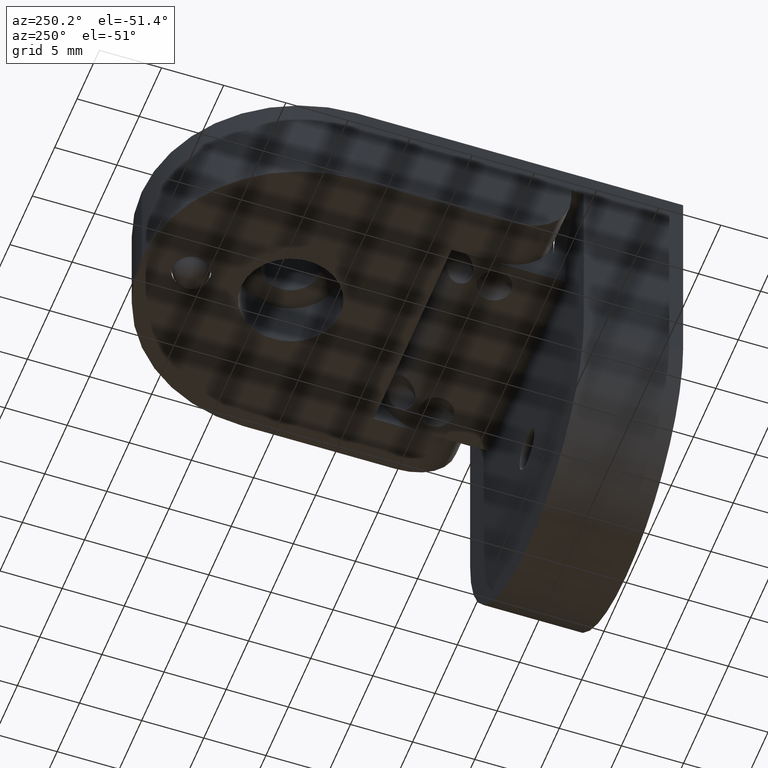
[diagram: clean part render]
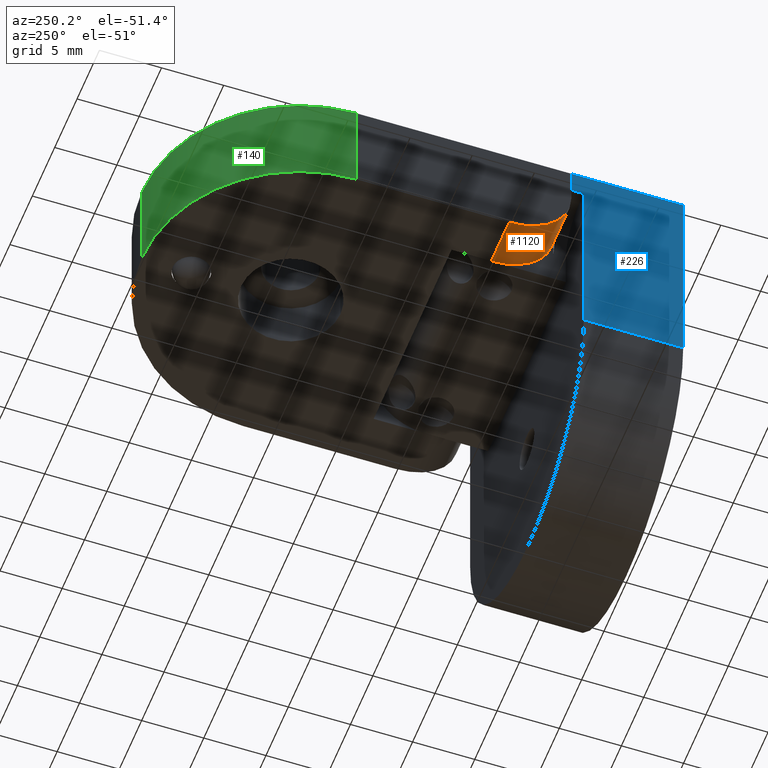
[diagram: same view with three faces highlighted in distinct colors, each labeled with its STEP entity id]
A machine part, auxiliary view with three faces highlighted in distinct colors.
Their STEP definitions:

[orange] entity #1120 — the highlighted cylindrical surface (partial cylindrical patch) has radius 5 mm, axis along (1, -0, -0).
#10 = AXIS2_PLACEMENT_3D ( 'NONE', #566, #1873, #1452 ) ;
#34 = EDGE_CURVE ( 'NONE', #1153, #2716, #87, .T. ) ;
#36 = VECTOR ( 'NONE', #2794, 1000.000000000000000 ) ;
#72 = CYLINDRICAL_SURFACE ( 'NONE', #906, 4.999999999999999100 ) ;
#87 = CIRCLE ( 'NONE', #10, 5.000000000000000900 ) ;
#152 = CARTESIAN_POINT ( 'NONE',  ( -8.699999999999985100, 13.99999999999999500, -7.999999999999996400 ) ) ;
#288 = ORIENTED_EDGE ( 'NONE', *, *, #381, .F. ) ;
#309 = ORIENTED_EDGE ( 'NONE', *, *, #692, .F. ) ;
#381 = EDGE_CURVE ( 'NONE', #1014, #2231, #1895, .T. ) ;
#497 = ORIENTED_EDGE ( 'NONE', *, *, #34, .F. ) ;
#517 = AXIS2_PLACEMENT_3D ( 'NONE', #2078, #2517, #1188 ) ;
#566 = CARTESIAN_POINT ( 'NONE',  ( -8.699999999999985100, 13.99999999999999500, -2.999999999999996400 ) ) ;
#584 = CARTESIAN_POINT ( 'NONE',  ( -12.69999999999999400, 8.999999999999996400, -2.999999999999995600 ) ) ;
#688 = CARTESIAN_POINT ( 'NONE',  ( -12.69999999999999200, 13.99999999999999600, -2.999999999999995600 ) ) ;
#692 = EDGE_CURVE ( 'NONE', #2716, #1014, #1910, .T. ) ;
#906 = AXIS2_PLACEMENT_3D ( 'NONE', #688, #2404, #2325 ) ;
#930 = CARTESIAN_POINT ( 'NONE',  ( -12.69999999999999200, 13.99999999999999600, -7.999999999999996400 ) ) ;
#1014 = VERTEX_POINT ( 'NONE', #1780 ) ;
#1120 = ADVANCED_FACE ( 'NONE', ( #2018 ), #72, .T. ) ;
#1153 = VERTEX_POINT ( 'NONE', #2570 ) ;
#1188 = DIRECTION ( 'NONE',  ( 3.469446951953614700E-016, 1.000000000000000000, 8.673617379884037400E-016 ) ) ;
#1338 = VECTOR ( 'NONE', #2206, 1000.000000000000000 ) ;
#1452 = DIRECTION ( 'NONE',  ( -3.469446951953613700E-016, -1.000000000000000000, 0.0000000000000000000 ) ) ;
#1624 = CARTESIAN_POINT ( 'NONE',  ( -12.69999999999999400, 8.999999999999996400, -2.999999999999995600 ) ) ;
#1699 = LINE ( 'NONE', #584, #36 ) ;
#1733 = EDGE_LOOP ( 'NONE', ( #288, #309, #497, #2555 ) ) ;
#1780 = CARTESIAN_POINT ( 'NONE',  ( -12.69999999999999000, 13.99999999999999500, -7.999999999999996400 ) ) ;
#1873 = DIRECTION ( 'NONE',  ( 1.000000000000000000, -1.738121547108112200E-016, -1.734720147809983500E-016 ) ) ;
#1895 = CIRCLE ( 'NONE', #517, 4.999999999999999100 ) ;
#1910 = LINE ( 'NONE', #930, #1338 ) ;
#2018 = FACE_OUTER_BOUND ( 'NONE', #1733, .T. ) ;
#2078 = CARTESIAN_POINT ( 'NONE',  ( -12.69999999999999000, 13.99999999999999600, -2.999999999999995600 ) ) ;
#2206 = DIRECTION ( 'NONE',  ( -1.000000000000000000, 1.738121547108112200E-016, 1.734720147809983500E-016 ) ) ;
#2231 = VERTEX_POINT ( 'NONE', #1624 ) ;
#2325 = DIRECTION ( 'NONE',  ( 3.469446951953614700E-016, 1.000000000000000000, 0.0000000000000000000 ) ) ;
#2404 = DIRECTION ( 'NONE',  ( 1.000000000000000000, -1.738121547108112200E-016, -1.734720147809983500E-016 ) ) ;
#2517 = DIRECTION ( 'NONE',  ( -1.000000000000000000, 4.051086181743855900E-016, 1.734720147809983500E-016 ) ) ;
#2555 = ORIENTED_EDGE ( 'NONE', *, *, #2748, .F. ) ;
#2570 = CARTESIAN_POINT ( 'NONE',  ( -8.699999999999986900, 8.999999999999996400, -2.999999999999996400 ) ) ;
#2716 = VERTEX_POINT ( 'NONE', #152 ) ;
#2748 = EDGE_CURVE ( 'NONE', #2231, #1153, #1699, .T. ) ;
#2794 = DIRECTION ( 'NONE',  ( 1.000000000000000000, -1.738121547108112200E-016, -1.734720147809983500E-016 ) ) ;

[blue] entity #226 — the highlighted planar face has unit normal (1, -0, 0).
#32 = FACE_OUTER_BOUND ( 'NONE', #1155, .T. ) ;
#153 = DIRECTION ( 'NONE',  ( 2.312964634635743400E-016, 0.0000000000000000000, -1.000000000000000000 ) ) ;
#224 = EDGE_CURVE ( 'NONE', #1386, #235, #605, .T. ) ;
#226 = ADVANCED_FACE ( 'NONE', ( #32 ), #1844, .F. ) ;
#235 = VERTEX_POINT ( 'NONE', #797 ) ;
#287 = CARTESIAN_POINT ( 'NONE',  ( -12.69999999999999800, 8.000000000000000000, -30.00000000000000000 ) ) ;
#439 = CARTESIAN_POINT ( 'NONE',  ( -12.69999999999999900, 8.000000000000000000, -2.000000000000000000 ) ) ;
#605 = LINE ( 'NONE', #1892, #2266 ) ;
#606 = DIRECTION ( 'NONE',  ( -0.0000000000000000000, -1.000000000000000000, -0.0000000000000000000 ) ) ;
#626 = EDGE_CURVE ( 'NONE', #1391, #1576, #2116, .T. ) ;
#684 = VECTOR ( 'NONE', #691, 1000.000000000000000 ) ;
#691 = DIRECTION ( 'NONE',  ( -2.312964634635743000E-016, 0.0000000000000000000, 1.000000000000000000 ) ) ;
#694 = DIRECTION ( 'NONE',  ( -0.0000000000000000000, -0.0000000000000000000, 1.000000000000000000 ) ) ;
#797 = CARTESIAN_POINT ( 'NONE',  ( -12.70000000000000100, 0.0000000000000000000, -17.30000000000000800 ) ) ;
#871 = DIRECTION ( 'NONE',  ( 1.000000000000000000, -0.0000000000000000000, 2.312964634635743400E-016 ) ) ;
#933 = EDGE_CURVE ( 'NONE', #1386, #1576, #2274, .T. ) ;
#981 = VERTEX_POINT ( 'NONE', #1955 ) ;
#1121 = CARTESIAN_POINT ( 'NONE',  ( -12.69999999999999900, 9.000000000000001800, -3.673940397442155600E-017 ) ) ;
#1130 = VECTOR ( 'NONE', #606, 1000.000000000000000 ) ;
#1155 = EDGE_LOOP ( 'NONE', ( #1896, #1935, #1971, #2035, #2099, #2175 ) ) ;
#1186 = CARTESIAN_POINT ( 'NONE',  ( -12.69999999999999800, 8.000000000000000000, -30.00000000000000000 ) ) ;
#1229 = VECTOR ( 'NONE', #694, 1000.000000000000000 ) ;
#1264 = LINE ( 'NONE', #1548, #684 ) ;
#1306 = LINE ( 'NONE', #1121, #1229 ) ;
#1312 = CARTESIAN_POINT ( 'NONE',  ( -12.69999999999999900, 9.000000000000001800, -2.000000000000000000 ) ) ;
#1386 = VERTEX_POINT ( 'NONE', #1508 ) ;
#1391 = VERTEX_POINT ( 'NONE', #1312 ) ;
#1507 = DIRECTION ( 'NONE',  ( -0.0000000000000000000, -1.000000000000000000, -0.0000000000000000000 ) ) ;
#1508 = CARTESIAN_POINT ( 'NONE',  ( -12.70000000000000100, 8.000000000000000000, -17.30000000000000800 ) ) ;
#1548 = CARTESIAN_POINT ( 'NONE',  ( -12.69999999999999800, 0.0000000000000000000, -30.00000000000000000 ) ) ;
#1563 = CARTESIAN_POINT ( 'NONE',  ( -12.69999999999999900, 9.000000000000001800, -3.673940397442155600E-017 ) ) ;
#1576 = VERTEX_POINT ( 'NONE', #439 ) ;
#1672 = DIRECTION ( 'NONE',  ( 0.0000000000000000000, -1.000000000000000000, 0.0000000000000000000 ) ) ;
#1703 = LINE ( 'NONE', #1914, #1130 ) ;
#1844 = PLANE ( 'NONE',  #1847 ) ;
#1847 = AXIS2_PLACEMENT_3D ( 'NONE', #1186, #871, #153 ) ;
#1864 = VERTEX_POINT ( 'NONE', #1563 ) ;
#1892 = CARTESIAN_POINT ( 'NONE',  ( -12.70000000000000100, 8.000000000000000000, -17.30000000000000800 ) ) ;
#1896 = ORIENTED_EDGE ( 'NONE', *, *, #933, .F. ) ;
#1914 = CARTESIAN_POINT ( 'NONE',  ( -12.70000000000000500, 8.000000000000000000, -1.340988245066351500E-015 ) ) ;
#1935 = ORIENTED_EDGE ( 'NONE', *, *, #224, .T. ) ;
#1955 = CARTESIAN_POINT ( 'NONE',  ( -12.70000000000000500, 0.0000000000000000000, -1.340988245066351500E-015 ) ) ;
#1971 = ORIENTED_EDGE ( 'NONE', *, *, #2473, .T. ) ;
#2022 = EDGE_CURVE ( 'NONE', #1391, #1864, #1306, .T. ) ;
#2035 = ORIENTED_EDGE ( 'NONE', *, *, #2378, .F. ) ;
#2099 = ORIENTED_EDGE ( 'NONE', *, *, #2022, .F. ) ;
#2116 = LINE ( 'NONE', #2627, #2653 ) ;
#2175 = ORIENTED_EDGE ( 'NONE', *, *, #626, .T. ) ;
#2266 = VECTOR ( 'NONE', #1672, 1000.000000000000000 ) ;
#2274 = LINE ( 'NONE', #287, #2753 ) ;
#2374 = DIRECTION ( 'NONE',  ( -2.312964634635743000E-016, 0.0000000000000000000, 1.000000000000000000 ) ) ;
#2378 = EDGE_CURVE ( 'NONE', #1864, #981, #1703, .T. ) ;
#2473 = EDGE_CURVE ( 'NONE', #235, #981, #1264, .T. ) ;
#2627 = CARTESIAN_POINT ( 'NONE',  ( -12.69999999999999900, 9.000000000000001800, -2.000000000000000000 ) ) ;
#2653 = VECTOR ( 'NONE', #1507, 1000.000000000000000 ) ;
#2753 = VECTOR ( 'NONE', #2374, 1000.000000000000000 ) ;

[green] entity #140 — the highlighted cylindrical surface (partial cylindrical patch) has radius 12.7 mm, axis along (-0, -0, -1).
#140 = ADVANCED_FACE ( 'NONE', ( #882 ), #671, .T. ) ;
#219 = EDGE_CURVE ( 'NONE', #2545, #977, #247, .T. ) ;
#247 = CIRCLE ( 'NONE', #2705, 12.69999999999999900 ) ;
#258 = ORIENTED_EDGE ( 'NONE', *, *, #219, .F. ) ;
#322 = EDGE_CURVE ( 'NONE', #770, #977, #2639, .T. ) ;
#650 = ORIENTED_EDGE ( 'NONE', *, *, #322, .T. ) ;
#671 = CYLINDRICAL_SURFACE ( 'NONE', #2115, 12.69999999999999600 ) ;
#693 = CARTESIAN_POINT ( 'NONE',  ( 1.201800217643921200E-014, 26.29999999999999700, -7.999999999999998200 ) ) ;
#770 = VERTEX_POINT ( 'NONE', #912 ) ;
#882 = FACE_OUTER_BOUND ( 'NONE', #1608, .T. ) ;
#912 = CARTESIAN_POINT ( 'NONE',  ( 1.681593426952508600E-014, 38.99999999999999300, 1.734723475976807100E-015 ) ) ;
#977 = VERTEX_POINT ( 'NONE', #1997 ) ;
#1094 = CIRCLE ( 'NONE', #2786, 12.69999999999999900 ) ;
#1246 = DIRECTION ( 'NONE',  ( 1.734720147809983000E-016, 0.0000000000000000000, 1.000000000000000000 ) ) ;
#1256 = DIRECTION ( 'NONE',  ( -1.738121547108112500E-016, -1.000000000000000000, 0.0000000000000000000 ) ) ;
#1279 = CARTESIAN_POINT ( 'NONE',  ( 1.340577829468719800E-014, 26.29999999999999700, 1.734723475976807100E-015 ) ) ;
#1302 = ORIENTED_EDGE ( 'NONE', *, *, #2343, .F. ) ;
#1383 = CARTESIAN_POINT ( 'NONE',  ( -12.69999999999998500, 26.30000000000000400, 3.469446951953614200E-015 ) ) ;
#1389 = EDGE_CURVE ( 'NONE', #2211, #2545, #2718, .T. ) ;
#1407 = CARTESIAN_POINT ( 'NONE',  ( 1.681593426952508600E-014, 38.99999999999999300, 1.734723475976807100E-015 ) ) ;
#1442 = DIRECTION ( 'NONE',  ( -1.734720147809983000E-016, -0.0000000000000000000, -1.000000000000000000 ) ) ;
#1473 = DIRECTION ( 'NONE',  ( -1.734720147809983000E-016, -0.0000000000000000000, -1.000000000000000000 ) ) ;
#1556 = CARTESIAN_POINT ( 'NONE',  ( -12.69999999999998700, 26.30000000000000400, -7.999999999999996400 ) ) ;
#1608 = EDGE_LOOP ( 'NONE', ( #1302, #650, #258, #2751 ) ) ;
#1647 = DIRECTION ( 'NONE',  ( -1.734720147809983000E-016, -0.0000000000000000000, -1.000000000000000000 ) ) ;
#1648 = DIRECTION ( 'NONE',  ( 1.738121547108113000E-016, 1.000000000000000000, 0.0000000000000000000 ) ) ;
#1656 = CARTESIAN_POINT ( 'NONE',  ( -12.69999999999998500, 26.30000000000000400, 3.469446951953614200E-015 ) ) ;
#1997 = CARTESIAN_POINT ( 'NONE',  ( 1.542815815127709900E-014, 38.99999999999999300, -7.999999999999998200 ) ) ;
#2102 = DIRECTION ( 'NONE',  ( -1.734720147809983000E-016, -0.0000000000000000000, -1.000000000000000000 ) ) ;
#2112 = VECTOR ( 'NONE', #1442, 1000.000000000000000 ) ;
#2115 = AXIS2_PLACEMENT_3D ( 'NONE', #1279, #2102, #1648 ) ;
#2211 = VERTEX_POINT ( 'NONE', #1383 ) ;
#2343 = EDGE_CURVE ( 'NONE', #770, #2211, #1094, .T. ) ;
#2545 = VERTEX_POINT ( 'NONE', #1556 ) ;
#2552 = VECTOR ( 'NONE', #1647, 1000.000000000000000 ) ;
#2556 = CARTESIAN_POINT ( 'NONE',  ( 1.340577829468719800E-014, 26.29999999999999700, 1.734723475976807100E-015 ) ) ;
#2639 = LINE ( 'NONE', #1407, #2552 ) ;
#2705 = AXIS2_PLACEMENT_3D ( 'NONE', #693, #1473, #1256 ) ;
#2718 = LINE ( 'NONE', #1656, #2112 ) ;
#2751 = ORIENTED_EDGE ( 'NONE', *, *, #1389, .F. ) ;
#2786 = AXIS2_PLACEMENT_3D ( 'NONE', #2556, #1246, #2804 ) ;
#2804 = DIRECTION ( 'NONE',  ( -1.738121547108112500E-016, -1.000000000000000000, 0.0000000000000000000 ) ) ;